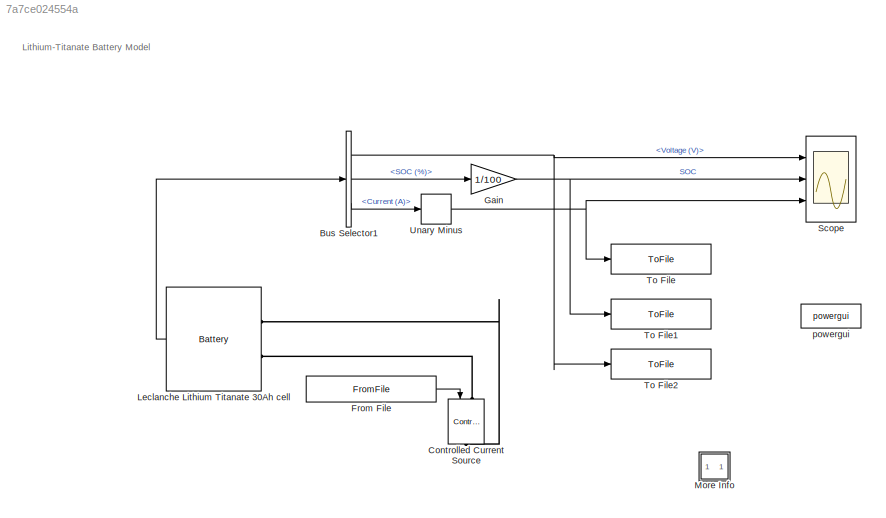
MODEL slx_7a7ce024554a
KIND model
CONFIG AbsTol = auto
CONFIG FixedStep = auto
CONFIG MaxStep = 0.1
CONFIG MinStep = auto
CONFIG RelTol = 1e-4
CONFIG SampleTimeConstraint = Unconstrained
CONFIG Solver = ode23tb
CONFIG SolverMode = Auto
CONFIG SolverName = ode23tb
CONFIG StartTime = 182670
CONFIG StopTime = 186900
BLOCK [BusSelector] Bus Selector1
  OutputSignals = Voltage (V),SOC (%),Current (A)
  Ports = [1, 3]
BLOCK [Reference] Controlled Current Source  REF=powerlib/Electrical
Sources/Controlled Current Source
  Ports = [1, 0, 0, 0, 0, 1, 1]
  SourceBlock = powerlib/Electrical\nSources/Controlled Current Source
  SourceType = Controlled Current Source
BLOCK [FromFile] From File
  FileName = test_current_formatted.mat
  SampleTime = 10
BLOCK [Gain] Gain
  Gain = 1/100
  OutDataTypeStr = Inherit: Inherit via internal rule
  ParamDataTypeStr = Inherit: Inherit via internal rule
  SaturateOnIntegerOverflow = off
BLOCK [Reference] Leclanche Lithium Titanate 30Ah cell   REF=electricdrivelib/Extra Sources/Battery
  Ports = [0, 1, 0, 0, 0, 2]
  SourceBlock = electricdrivelib/Extra Sources/Battery
  SourceType = Battery
BLOCK [SubSystem] More Info
  OpenFcn = showdemo(bdroot(gcb))
  Ports = []
  RequestExecContextInheritance = off
  Variant = off
BLOCK [Scope] Scope
  NumInputPorts = 3
  Ports = [3]
  ScopeSpecificationString = Simulink.scopes.TimeScopeBlockCfg('CurrentConfiguration', extmgr.ConfigurationSet(extmgr.Configuration('Core','General UI',true),extmgr.Configuration('Core','Source UI',true),extmgr.Configuration('Sources','WiredSimulink',true,'DataLogging',true,'DataLoggingVariableName','ScopeData1','DataLoggingSaveFormat','StructureWithTime','DataLoggingDecimation','1','DataLoggingDecimateData',true,'SampleTime'...<+3756ch>
BLOCK [ToFile] To File
  Filename = current_simulink.mat
  MatrixName = c
  Ports = [1]
  SampleTime = 10
BLOCK [ToFile] To File1
  Filename = soc_simulink.mat
  MatrixName = soc
  Ports = [1]
  SampleTime = 10
BLOCK [ToFile] To File2
  Filename = voltage_simulink.mat
  MatrixName = v
  Ports = [1]
  SampleTime = 10
BLOCK [UnaryMinus] Unary Minus
BLOCK [Reference] powergui  REF=powerlib/powergui
  Ports = []
  SourceBlock = powerlib/powergui
  SourceType = PSB option menu block
  UserDataPersistent = on
ANNOTATION (root): Lithium-Titanate Battery Model
NET Bus Selector1:1 -> Scope:1, To File2:1
LINE Bus Selector1:2 -> Gain:1
LINE Bus Selector1:3 -> Unary Minus:1
LINE From File:1 -> Controlled Current Source:1
NET Gain:1 -> Scope:2, To File1:1
LINE Leclanche Lithium Titanate 30Ah cell :1 -> Bus Selector1:1
NET Unary Minus:1 -> Scope:3, To File:1
PLINE Controlled Current Source:LConn1 -- Leclanche Lithium Titanate 30Ah cell :LConn2
PLINE Controlled Current Source:RConn1 -- Leclanche Lithium Titanate 30Ah cell :LConn1
note: NET lines group one-source signal fan-out (src -> all destinations, sorted); 1:1 wires keep LINE
